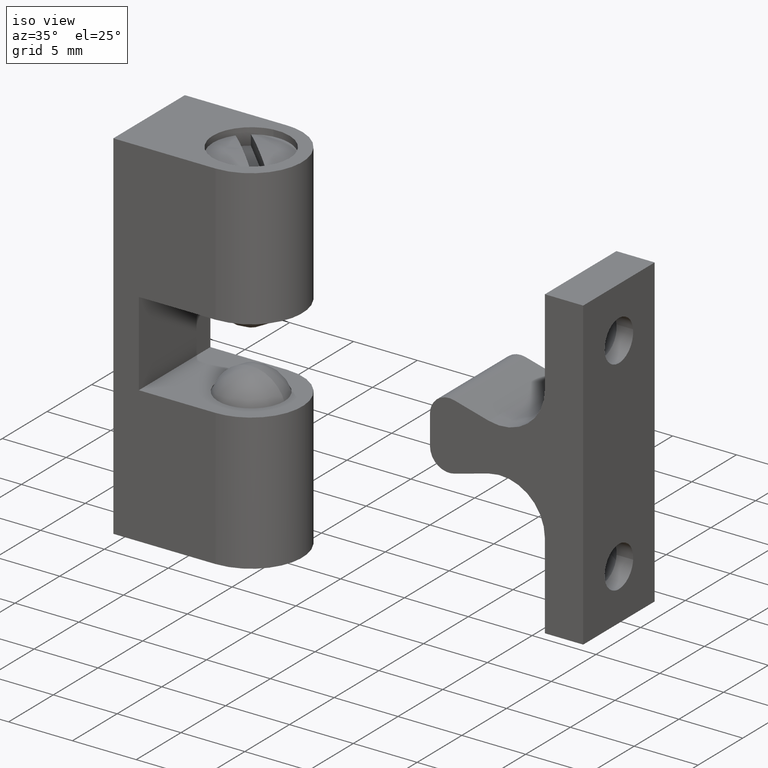
[diagram: clean part render]
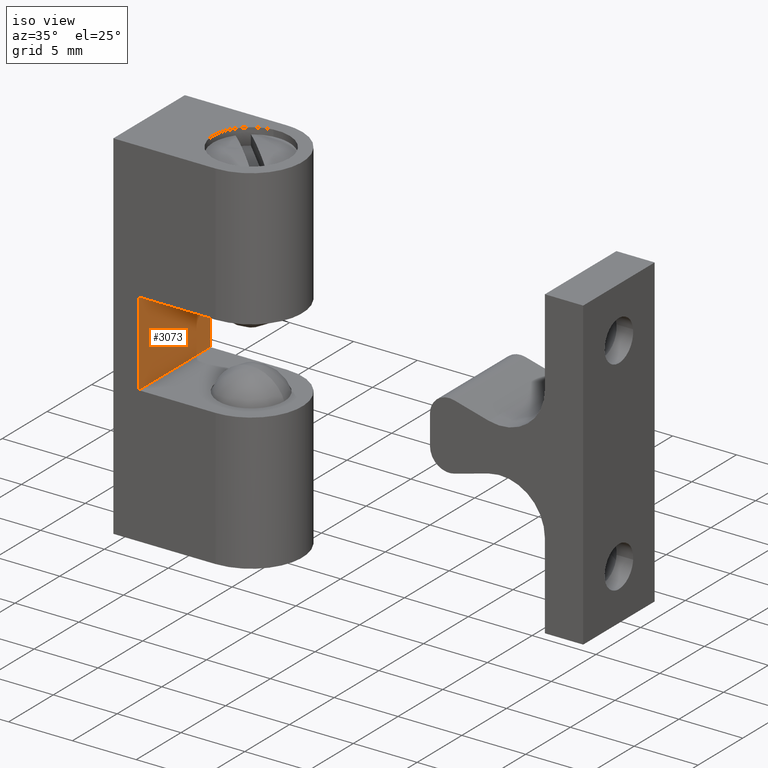
[diagram: same view with one face highlighted and labeled with its STEP entity id]
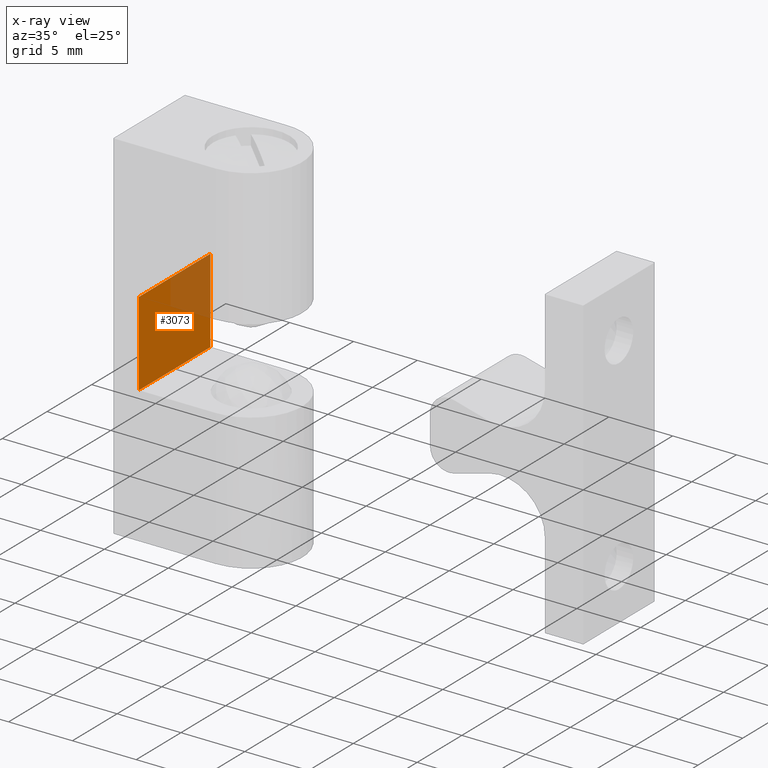
[diagram: x-ray of the same camera — body ghosted, the highlighted face saturated]
A machine part, iso view. The second image highlights one B-rep face of the part: STEP entity #3073.
The next image is the same camera in x-ray: the body ghosted, the highlighted face saturated — about 28% of this face is hidden behind the body in this view.
In plain terms, the highlighted face is a freeform B-spline surface patch.
Its self-contained STEP definition (entity closure, byte-faithful):
#3038=CARTESIAN_POINT('',(1.999900000000000,-4.399599984494448,3.629669987207920));
#3039=CARTESIAN_POINT('',(1.999900000000000,-4.399599984494448,-3.629670164233714));
#3040=CARTESIAN_POINT('',(1.999900000000000,4.399600199071169,3.629669987207920));
#3041=CARTESIAN_POINT('',(1.999900000000000,4.399600199071169,-3.629670164233714));
#3042=B_SPLINE_SURFACE_WITH_KNOTS('',1,1,((#3038,#3040),(#3039,#3041)),.UNSPECIFIED.,.F.,.F.,.U.,(2,2),(2,2),(0.0,7.259340151441634),(0.0,8.799200183565617),.UNSPECIFIED.);
#3043=CARTESIAN_POINT('',(1.999900000000000,4.0,3.300000000000000));
#3044=VERTEX_POINT('',#3043);
#3045=CARTESIAN_POINT('',(1.999900000000000,4.0,-3.300000000000000));
#3046=VERTEX_POINT('',#3045);
#3047=CARTESIAN_POINT('',(1.999900000000000,4.0,3.300000000000000));
#3048=CARTESIAN_POINT('',(1.999900000000000,4.0,-3.300000000000000));
#3049=QUASI_UNIFORM_CURVE('',1,(#3047,#3048),.UNSPECIFIED.,.F.,.U.);
#3050=EDGE_CURVE('',#3044,#3046,#3049,.T.);
#3051=ORIENTED_EDGE('',*,*,#3050,.F.);
#3052=CARTESIAN_POINT('',(1.999900000000000,-4.0,3.300000000000000));
#3053=VERTEX_POINT('',#3052);
#3054=CARTESIAN_POINT('',(1.999900000000000,-4.0,3.300000000000000));
#3055=CARTESIAN_POINT('',(1.999900000000000,4.0,3.300000000000000));
#3056=QUASI_UNIFORM_CURVE('',1,(#3054,#3055),.UNSPECIFIED.,.F.,.U.);
#3057=EDGE_CURVE('',#3053,#3044,#3056,.T.);
#3058=ORIENTED_EDGE('',*,*,#3057,.F.);
#3059=CARTESIAN_POINT('',(1.999900000000000,-4.0,-3.300000000000000));
#3060=VERTEX_POINT('',#3059);
#3061=CARTESIAN_POINT('',(1.999900000000000,-4.0,3.300000000000000));
#3062=CARTESIAN_POINT('',(1.999900000000000,-4.0,-3.300000000000000));
#3063=QUASI_UNIFORM_CURVE('',1,(#3061,#3062),.UNSPECIFIED.,.F.,.U.);
#3064=EDGE_CURVE('',#3053,#3060,#3063,.T.);
#3065=ORIENTED_EDGE('',*,*,#3064,.T.);
#3066=CARTESIAN_POINT('',(1.999900000000000,-4.0,-3.300000000000000));
#3067=CARTESIAN_POINT('',(1.999900000000000,4.0,-3.300000000000000));
#3068=QUASI_UNIFORM_CURVE('',1,(#3066,#3067),.UNSPECIFIED.,.F.,.U.);
#3069=EDGE_CURVE('',#3060,#3046,#3068,.T.);
#3070=ORIENTED_EDGE('',*,*,#3069,.T.);
#3071=EDGE_LOOP('',(#3051,#3058,#3065,#3070));
#3072=FACE_OUTER_BOUND('',#3071,.T.);
#3073=ADVANCED_FACE('',(#3072),#3042,.T.);